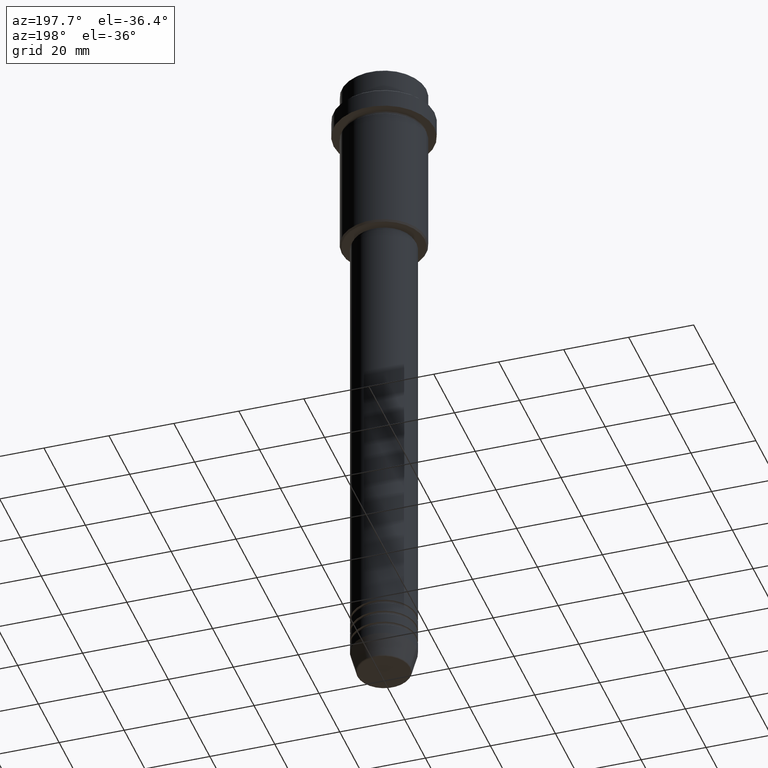
[diagram: clean part render]
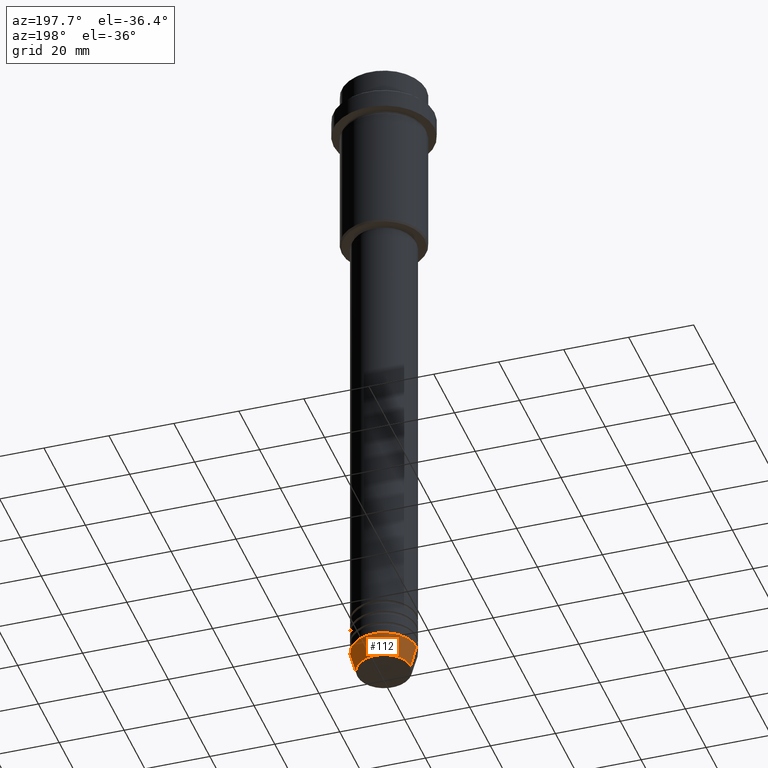
[diagram: same view with one face highlighted and labeled with its STEP entity id]
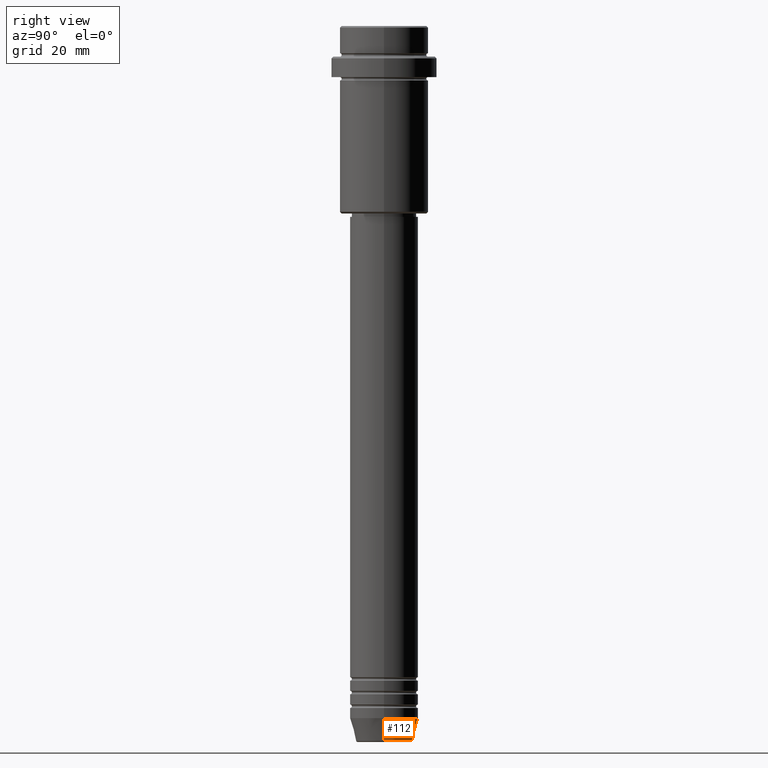
[diagram: same view with one face highlighted and labeled with its STEP entity id]
A machine part, auxiliary view. The second image highlights one B-rep face of the part: STEP entity #112.
A second angle (right view) of the same face is appended — the face is thin or edge-on in the first view.
In plain terms, the highlighted conical surface has half-angle 15 deg.
Its self-contained STEP definition (entity closure, byte-faithful):
#61 = VERTEX_POINT ( 'NONE', #1297 ) ;
#112 = ADVANCED_FACE ( 'NONE', ( #999 ), #411, .T. ) ;
#134 = LINE ( 'NONE', #1222, #723 ) ;
#150 = CARTESIAN_POINT ( 'NONE',  ( 0.000000000000000000, 0.000000000000000000, -203.0000000000000000 ) ) ;
#266 = AXIS2_PLACEMENT_3D ( 'NONE', #150, #1354, #594 ) ;
#268 = DIRECTION ( 'NONE',  ( -0.000000000000000000, -0.000000000000000000, 1.000000000000000000 ) ) ;
#345 = AXIS2_PLACEMENT_3D ( 'NONE', #1199, #550, #1413 ) ;
#411 = CONICAL_SURFACE ( 'NONE', #345, 10.00000000000000000, 0.2617993877991500740 ) ;
#454 = EDGE_CURVE ( 'NONE', #771, #1036, #524, .T. ) ;
#524 = LINE ( 'NONE', #728, #558 ) ;
#550 = DIRECTION ( 'NONE',  ( -0.000000000000000000, -0.000000000000000000, 1.000000000000000000 ) ) ;
#558 = VECTOR ( 'NONE', #1373, 1000.000000000000000 ) ;
#569 = DIRECTION ( 'NONE',  ( 0.2588190451025213501, 0.000000000000000000, 0.9659258262890680902 ) ) ;
#594 = DIRECTION ( 'NONE',  ( 1.000000000000000000, 0.000000000000000000, 0.000000000000000000 ) ) ;
#617 = ORIENTED_EDGE ( 'NONE', *, *, #1014, .T. ) ;
#723 = VECTOR ( 'NONE', #569, 1000.000000000000000 ) ;
#728 = CARTESIAN_POINT ( 'NONE',  ( -10.00000000000000000, 1.224646799147353256E-15, -203.0000000000000000 ) ) ;
#771 = VERTEX_POINT ( 'NONE', #973 ) ;
#810 = AXIS2_PLACEMENT_3D ( 'NONE', #1024, #268, #818 ) ;
#818 = DIRECTION ( 'NONE',  ( 1.000000000000000000, 0.000000000000000000, 0.000000000000000000 ) ) ;
#819 = ORIENTED_EDGE ( 'NONE', *, *, #896, .F. ) ;
#896 = EDGE_CURVE ( 'NONE', #1376, #61, #134, .T. ) ;
#931 = ORIENTED_EDGE ( 'NONE', *, *, #454, .T. ) ;
#973 = CARTESIAN_POINT ( 'NONE',  ( -8.223655072137191269, 1.115877042642912054E-15, -209.6294095225512706 ) ) ;
#977 = CIRCLE ( 'NONE', #810, 8.223655072137191269 ) ;
#999 = FACE_OUTER_BOUND ( 'NONE', #1395, .T. ) ;
#1014 = EDGE_CURVE ( 'NONE', #1376, #771, #977, .T. ) ;
#1024 = CARTESIAN_POINT ( 'NONE',  ( 0.000000000000000000, 0.000000000000000000, -209.6294095225512706 ) ) ;
#1036 = VERTEX_POINT ( 'NONE', #1131 ) ;
#1131 = CARTESIAN_POINT ( 'NONE',  ( -10.00000000000000000, 1.224646799147353256E-15, -203.0000000000000000 ) ) ;
#1161 = ORIENTED_EDGE ( 'NONE', *, *, #1405, .F. ) ;
#1199 = CARTESIAN_POINT ( 'NONE',  ( 0.000000000000000000, 0.000000000000000000, -203.0000000000000000 ) ) ;
#1222 = CARTESIAN_POINT ( 'NONE',  ( 10.00000000000000000, 0.000000000000000000, -203.0000000000000000 ) ) ;
#1297 = CARTESIAN_POINT ( 'NONE',  ( 10.00000000000000000, 0.000000000000000000, -203.0000000000000000 ) ) ;
#1334 = CARTESIAN_POINT ( 'NONE',  ( 8.223655072137191269, 0.000000000000000000, -209.6294095225512706 ) ) ;
#1335 = CIRCLE ( 'NONE', #266, 10.00000000000000000 ) ;
#1354 = DIRECTION ( 'NONE',  ( -0.000000000000000000, -0.000000000000000000, 1.000000000000000000 ) ) ;
#1373 = DIRECTION ( 'NONE',  ( -0.2588190451025213501, 3.169619151431772337E-17, 0.9659258262890680902 ) ) ;
#1376 = VERTEX_POINT ( 'NONE', #1334 ) ;
#1395 = EDGE_LOOP ( 'NONE', ( #617, #931, #1161, #819 ) ) ;
#1405 = EDGE_CURVE ( 'NONE', #61, #1036, #1335, .T. ) ;
#1413 = DIRECTION ( 'NONE',  ( 1.000000000000000000, 0.000000000000000000, 0.000000000000000000 ) ) ;